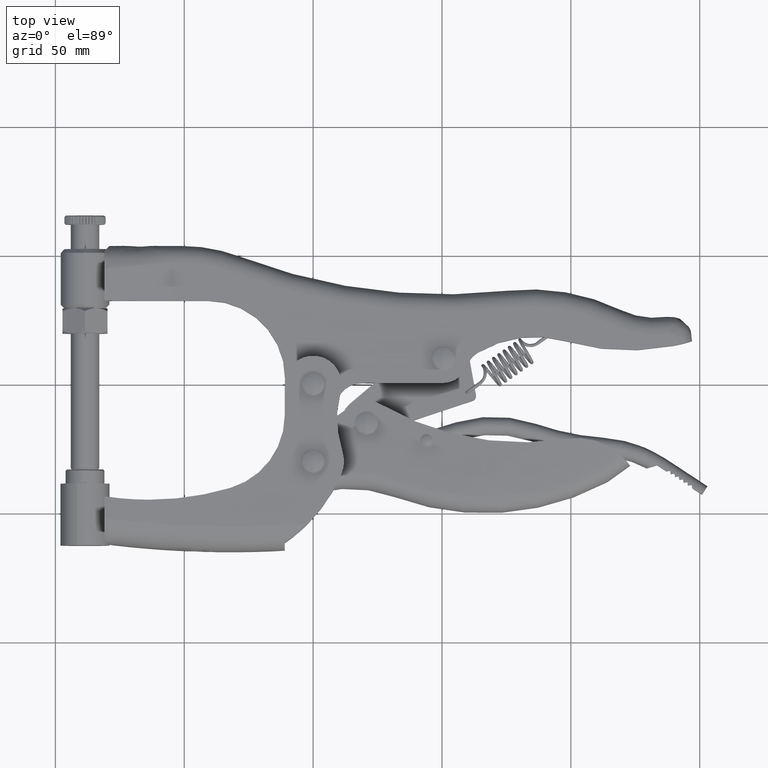
[diagram: clean part render]
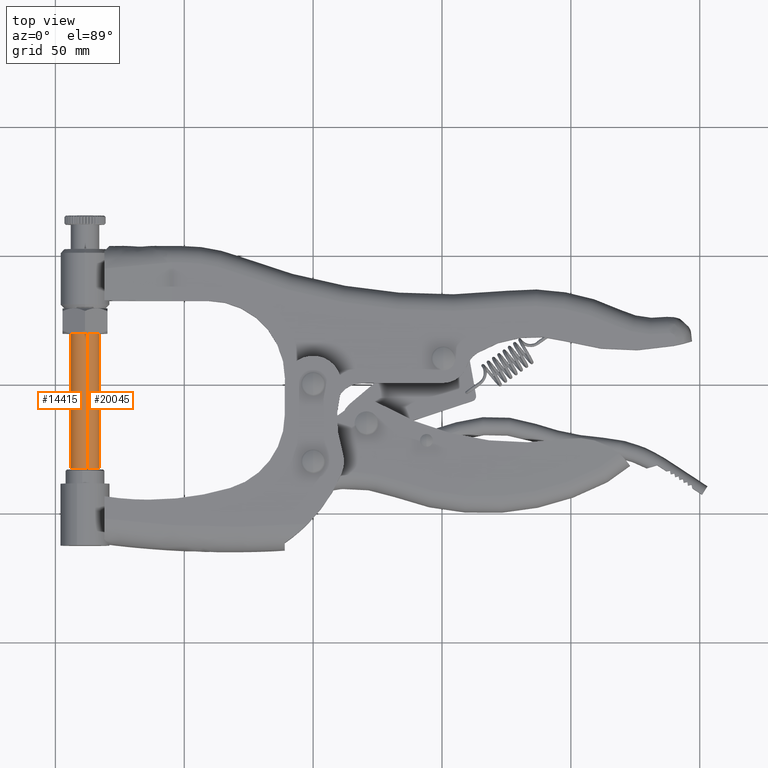
[diagram: same view with one multi-face feature highlighted, each face labeled with its STEP entity id]
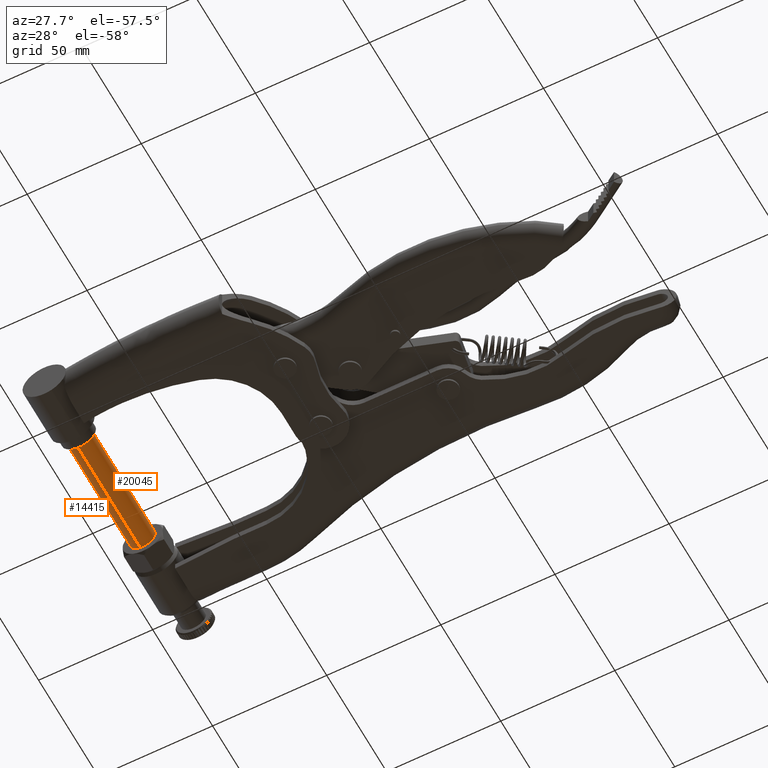
[diagram: same view with one multi-face feature highlighted, each face labeled with its STEP entity id]
A machine part, top view. The highlighted faces form ONE feature: a constant-radius fillet chain: 2 tangent blend faces with common blend radius 5.5563 mm. The faces share edges in the B-rep.
A second angle (auxiliary view) of the same feature is appended — it is thin or edge-on in the first view.
Their STEP definitions:
[1] entity #20045 (Cylinder):
#207 = CIRCLE ( 'NONE', #7112, 5.556249999999993200 ) ;
#1041 = DIRECTION ( 'NONE',  ( 0.1948927407360790400, 0.0000000000000000000, 0.9808245610752106500 ) ) ;
#2789 = EDGE_CURVE ( 'NONE', #4062, #26146, #24754, .T. ) ;
#4062 = VERTEX_POINT ( 'NONE', #8607 ) ;
#5252 = CARTESIAN_POINT ( 'NONE',  ( -88.49999999999995700, 176.7015104560067600, -3.817705780456232400E-015 ) ) ;
#5402 = LINE ( 'NONE', #19838, #16554 ) ;
#6492 = CARTESIAN_POINT ( 'NONE',  ( -88.49999999999995700, 19.72099999999998900, -3.817705780456232400E-015 ) ) ;
#6659 = CARTESIAN_POINT ( 'NONE',  ( -87.41712720928511300, 176.7015104560067600, 5.449706467474136700 ) ) ;
#6687 = CARTESIAN_POINT ( 'NONE',  ( -88.49999999999995700, -32.50000000000002800, -3.817705780456232400E-015 ) ) ;
#7112 = AXIS2_PLACEMENT_3D ( 'NONE', #6492, #21211, #8597 ) ;
#7258 = DIRECTION ( 'NONE',  ( 0.0000000000000000000, 1.000000000000000000, 0.0000000000000000000 ) ) ;
#7565 = CIRCLE ( 'NONE', #17618, 5.556250000000001200 ) ;
#8597 = DIRECTION ( 'NONE',  ( 0.0000000000000000000, 0.0000000000000000000, -1.000000000000000000 ) ) ;
#8607 = CARTESIAN_POINT ( 'NONE',  ( -87.41712720928511300, -32.50000000000002800, 5.449706467474136700 ) ) ;
#8787 = DIRECTION ( 'NONE',  ( 0.1948927407360790400, 0.0000000000000000000, 0.9808245610752106500 ) ) ;
#8931 = ORIENTED_EDGE ( 'NONE', *, *, #24794, .T. ) ;
#11049 = CYLINDRICAL_SURFACE ( 'NONE', #18343, 5.556250000000001200 ) ;
#11420 = CARTESIAN_POINT ( 'NONE',  ( -87.41712720928511300, 19.72099999999998900, 5.449706467474129600 ) ) ;
#16554 = VECTOR ( 'NONE', #7258, 1000.000000000000000 ) ;
#17618 = AXIS2_PLACEMENT_3D ( 'NONE', #6687, #21398, #8787 ) ;
#18343 = AXIS2_PLACEMENT_3D ( 'NONE', #5252, #21914, #1041 ) ;
#18591 = EDGE_CURVE ( 'NONE', #4062, #18689, #7565, .T. ) ;
#18689 = VERTEX_POINT ( 'NONE', #19433 ) ;
#19433 = CARTESIAN_POINT ( 'NONE',  ( -89.58287279071478800, -32.50000000000002800, -5.449706467474143800 ) ) ;
#19838 = CARTESIAN_POINT ( 'NONE',  ( -89.58287279071478800, 176.7015104560067600, -5.449706467474143800 ) ) ;
#20045 = ADVANCED_FACE ( 'NONE', ( #20938 ), #11049, .T. ) ;
#20938 = FACE_OUTER_BOUND ( 'NONE', #24248, .T. ) ;
#21166 = VECTOR ( 'NONE', #23186, 1000.000000000000000 ) ;
#21211 = DIRECTION ( 'NONE',  ( -0.0000000000000000000, 1.000000000000000000, -0.0000000000000000000 ) ) ;
#21398 = DIRECTION ( 'NONE',  ( 0.0000000000000000000, 1.000000000000000000, 0.0000000000000000000 ) ) ;
#21914 = DIRECTION ( 'NONE',  ( 0.0000000000000000000, 1.000000000000000000, 0.0000000000000000000 ) ) ;
#22611 = VERTEX_POINT ( 'NONE', #23375 ) ;
#22683 = ORIENTED_EDGE ( 'NONE', *, *, #2789, .F. ) ;
#23186 = DIRECTION ( 'NONE',  ( 0.0000000000000000000, 1.000000000000000000, 0.0000000000000000000 ) ) ;
#23375 = CARTESIAN_POINT ( 'NONE',  ( -89.58287279071478800, 19.72099999999998900, -5.449706467474135800 ) ) ;
#23600 = ORIENTED_EDGE ( 'NONE', *, *, #25803, .F. ) ;
#24245 = ORIENTED_EDGE ( 'NONE', *, *, #18591, .T. ) ;
#24248 = EDGE_LOOP ( 'NONE', ( #24245, #8931, #23600, #22683 ) ) ;
#24754 = LINE ( 'NONE', #6659, #21166 ) ;
#24794 = EDGE_CURVE ( 'NONE', #18689, #22611, #5402, .T. ) ;
#25803 = EDGE_CURVE ( 'NONE', #26146, #22611, #207, .T. ) ;
#26146 = VERTEX_POINT ( 'NONE', #11420 ) ;
[2] entity #14415 (Cylinder):
#1087 = AXIS2_PLACEMENT_3D ( 'NONE', #26287, #13615, #1111 ) ;
#1111 = DIRECTION ( 'NONE',  ( 0.0000000000000000000, 0.0000000000000000000, -1.000000000000000000 ) ) ;
#1134 = AXIS2_PLACEMENT_3D ( 'NONE', #2815, #4908, #15345 ) ;
#2789 = EDGE_CURVE ( 'NONE', #4062, #26146, #24754, .T. ) ;
#2815 = CARTESIAN_POINT ( 'NONE',  ( -88.49999999999995700, 176.7015104560067600, -3.817705780456232400E-015 ) ) ;
#3725 = EDGE_LOOP ( 'NONE', ( #12850, #11126, #13619, #4139 ) ) ;
#3803 = AXIS2_PLACEMENT_3D ( 'NONE', #13578, #15811, #9028 ) ;
#4062 = VERTEX_POINT ( 'NONE', #8607 ) ;
#4139 = ORIENTED_EDGE ( 'NONE', *, *, #15999, .F. ) ;
#4908 = DIRECTION ( 'NONE',  ( 0.0000000000000000000, 1.000000000000000000, 0.0000000000000000000 ) ) ;
#5402 = LINE ( 'NONE', #19838, #16554 ) ;
#6659 = CARTESIAN_POINT ( 'NONE',  ( -87.41712720928511300, 176.7015104560067600, 5.449706467474136700 ) ) ;
#7258 = DIRECTION ( 'NONE',  ( 0.0000000000000000000, 1.000000000000000000, 0.0000000000000000000 ) ) ;
#8258 = EDGE_CURVE ( 'NONE', #18689, #4062, #25140, .T. ) ;
#8607 = CARTESIAN_POINT ( 'NONE',  ( -87.41712720928511300, -32.50000000000002800, 5.449706467474136700 ) ) ;
#9028 = DIRECTION ( 'NONE',  ( 0.1948927407360790400, 0.0000000000000000000, 0.9808245610752106500 ) ) ;
#10632 = FACE_OUTER_BOUND ( 'NONE', #3725, .T. ) ;
#11126 = ORIENTED_EDGE ( 'NONE', *, *, #8258, .T. ) ;
#11420 = CARTESIAN_POINT ( 'NONE',  ( -87.41712720928511300, 19.72099999999998900, 5.449706467474129600 ) ) ;
#12850 = ORIENTED_EDGE ( 'NONE', *, *, #24794, .F. ) ;
#13578 = CARTESIAN_POINT ( 'NONE',  ( -88.49999999999995700, -32.50000000000002800, -3.817705780456232400E-015 ) ) ;
#13615 = DIRECTION ( 'NONE',  ( -0.0000000000000000000, 1.000000000000000000, -0.0000000000000000000 ) ) ;
#13619 = ORIENTED_EDGE ( 'NONE', *, *, #2789, .T. ) ;
#14415 = ADVANCED_FACE ( 'NONE', ( #10632 ), #24399, .T. ) ;
#15345 = DIRECTION ( 'NONE',  ( 0.1948927407360790400, 0.0000000000000000000, 0.9808245610752106500 ) ) ;
#15811 = DIRECTION ( 'NONE',  ( 0.0000000000000000000, 1.000000000000000000, 0.0000000000000000000 ) ) ;
#15999 = EDGE_CURVE ( 'NONE', #22611, #26146, #17903, .T. ) ;
#16554 = VECTOR ( 'NONE', #7258, 1000.000000000000000 ) ;
#17903 = CIRCLE ( 'NONE', #1087, 5.556249999999993200 ) ;
#18689 = VERTEX_POINT ( 'NONE', #19433 ) ;
#19433 = CARTESIAN_POINT ( 'NONE',  ( -89.58287279071478800, -32.50000000000002800, -5.449706467474143800 ) ) ;
#19838 = CARTESIAN_POINT ( 'NONE',  ( -89.58287279071478800, 176.7015104560067600, -5.449706467474143800 ) ) ;
#21166 = VECTOR ( 'NONE', #23186, 1000.000000000000000 ) ;
#22611 = VERTEX_POINT ( 'NONE', #23375 ) ;
#23186 = DIRECTION ( 'NONE',  ( 0.0000000000000000000, 1.000000000000000000, 0.0000000000000000000 ) ) ;
#23375 = CARTESIAN_POINT ( 'NONE',  ( -89.58287279071478800, 19.72099999999998900, -5.449706467474135800 ) ) ;
#24399 = CYLINDRICAL_SURFACE ( 'NONE', #1134, 5.556250000000001200 ) ;
#24754 = LINE ( 'NONE', #6659, #21166 ) ;
#24794 = EDGE_CURVE ( 'NONE', #18689, #22611, #5402, .T. ) ;
#25140 = CIRCLE ( 'NONE', #3803, 5.556250000000001200 ) ;
#26146 = VERTEX_POINT ( 'NONE', #11420 ) ;
#26287 = CARTESIAN_POINT ( 'NONE',  ( -88.49999999999995700, 19.72099999999998900, -3.817705780456232400E-015 ) ) ;